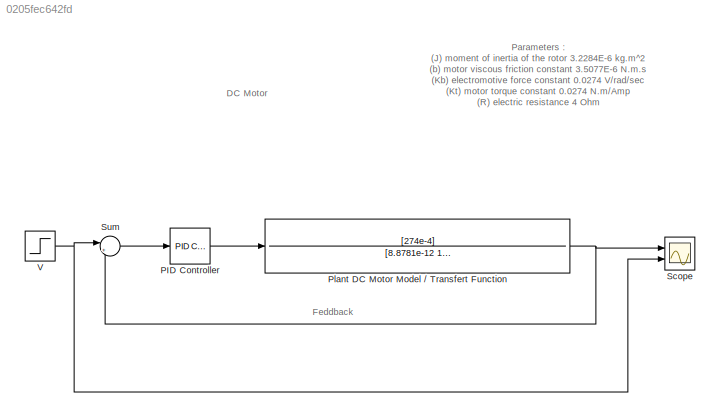
MODEL slx_0205fec642fd
KIND model
CONFIG AbsTol = auto
CONFIG EnableMultiTasking = off
CONFIG FixedStep = auto
CONFIG MaxStep = auto
CONFIG MinStep = auto
CONFIG RelTol = 1e-3
CONFIG SampleTimeConstraint = Unconstrained
CONFIG Solver = VariableStepAuto
CONFIG SolverName = VariableStepAuto
CONFIG StartTime = 0.0
CONFIG StopTime = 10.0
BLOCK [Reference] PID Controller  REF=simulink/Continuous/PID Controller
  Ports = [1, 1]
  SourceBlock = simulink/Continuous/PID Controller
  SourceProductBaseCode = SL
  SourceProductName = Simulink
  SourceType = PID 1dof
BLOCK [TransferFcn] Plant DC Motor Model // Transfert Function
  Denominator = [8.8781e-12 1.2914e-05 7.6479e-04 0]
  Numerator = [274e-4]
BLOCK [Scope] Scope
  Floating = off
  NumInputPorts = 2
  Ports = [2]
  ScopeSpecificationString = Simulink.scopes.TimeScopeBlockCfg('CurrentConfiguration', extmgr.ConfigurationSet(extmgr.Configuration('Core','General UI',true),extmgr.Configuration('Core','Source UI',true),extmgr.Configuration('Sources','WiredSimulink',true),extmgr.Configuration('Visuals','Time Domain',true,'SerializedDisplays',{struct('MinYLimReal','-0.13843','MaxYLimReal','1.24591','YLabelReal','','MinYLimMag','0.00000','MaxY...<+1364ch>
BLOCK [Sum] Sum
  IconShape = round
  InputSameDT = off
  Inputs = |+-
  OutDataTypeStr = Inherit: Inherit via internal rule
  Ports = [2, 1]
  SaturateOnIntegerOverflow = off
BLOCK [Step] V
  SampleTime = 0
ANNOTATION (root): Parameters : (J) moment of inertia of the rotor 3.2284E-6 kg.m^2 (b) motor viscous friction constant 3.5077E-6 N.m.s (Kb) electromotive force constant 0.0274 V/rad/sec (Kt) motor torque constant 0.0274 N.m/Amp (R) electric resistance 4 Ohm (L) electric inductance 2.75E-6H
ANNOTATION (root): DC Motor
ANNOTATION (root): Feddback
LINE PID Controller:1 -> Plant DC Motor Model // Transfert Function:1
NET Plant DC Motor Model // Transfert Function:1 -> Scope:1, Sum:2
LINE Sum:1 -> PID Controller:1
NET V:1 -> Scope:2, Sum:1
note: NET lines group one-source signal fan-out (src -> all destinations, sorted); 1:1 wires keep LINE
